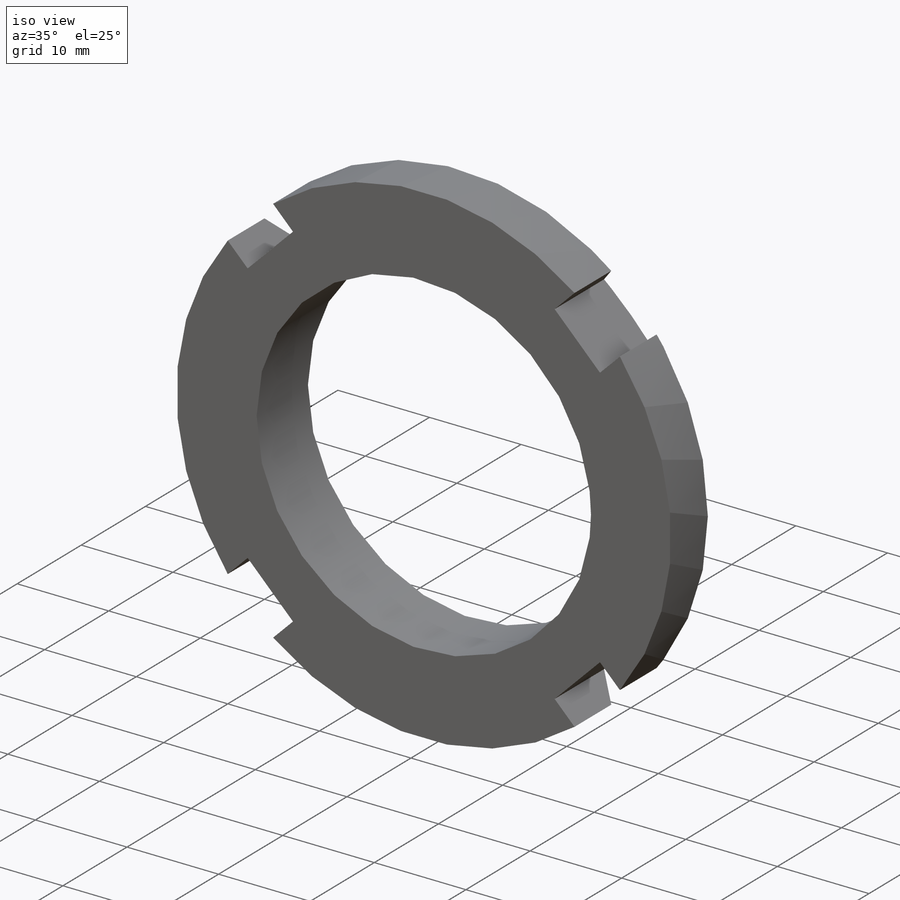
[diagram: iso view]
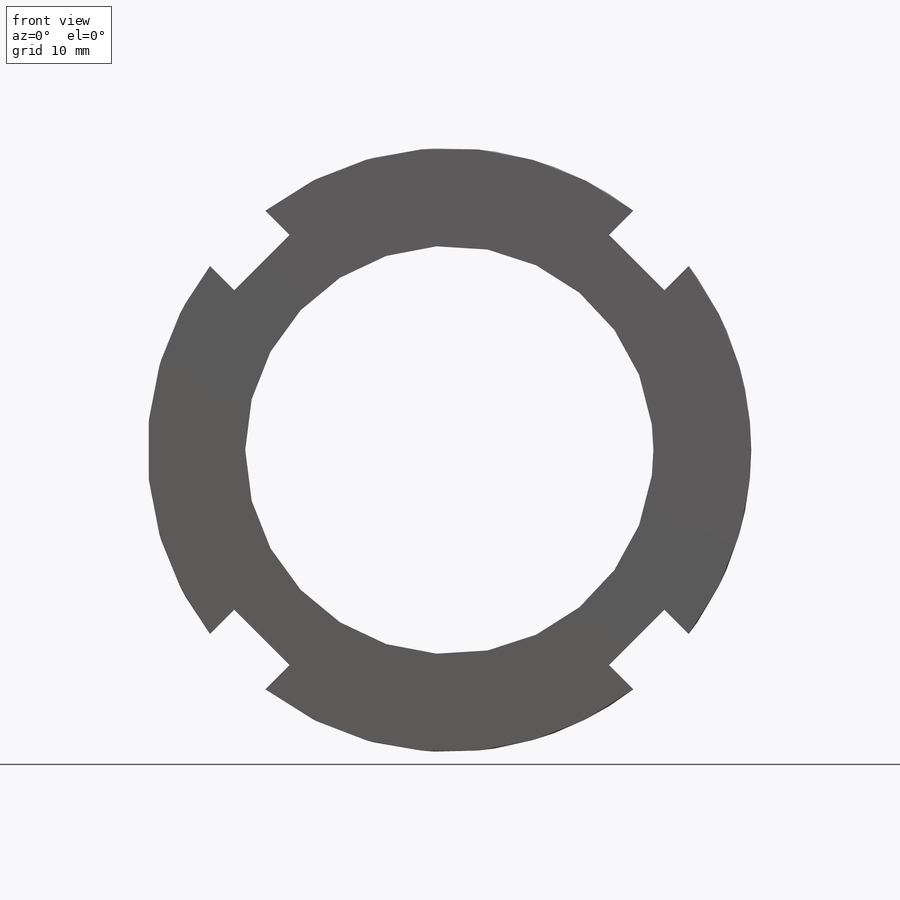
[diagram: front view]
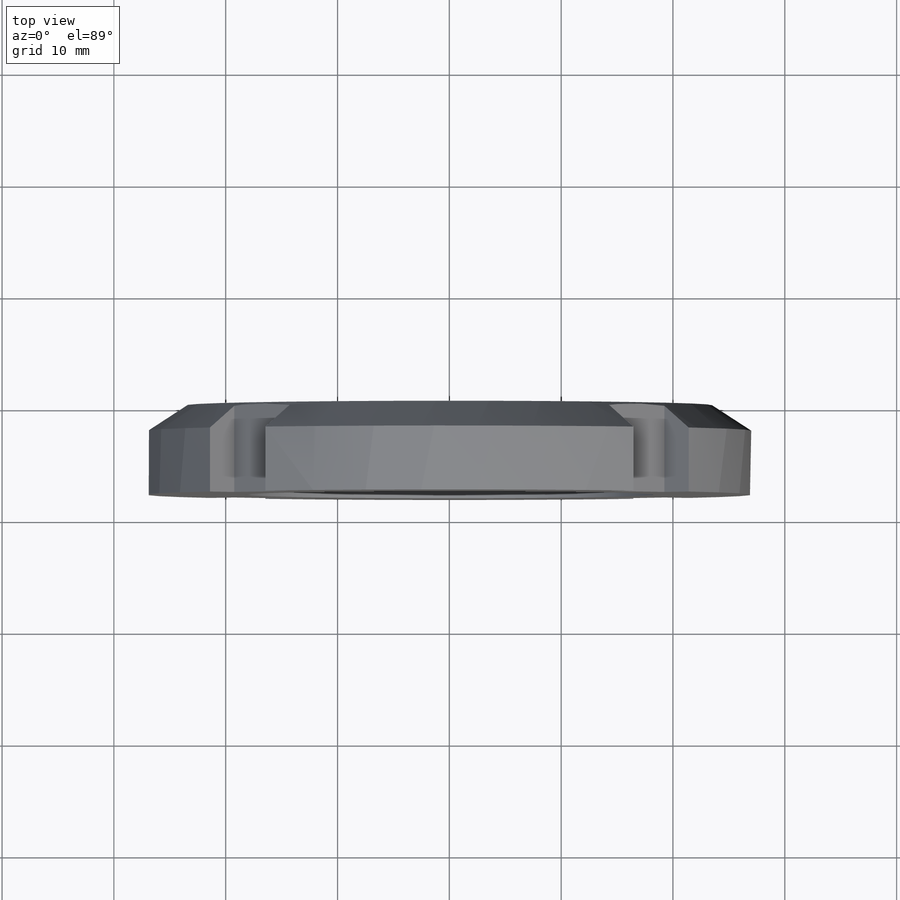
[diagram: top view]
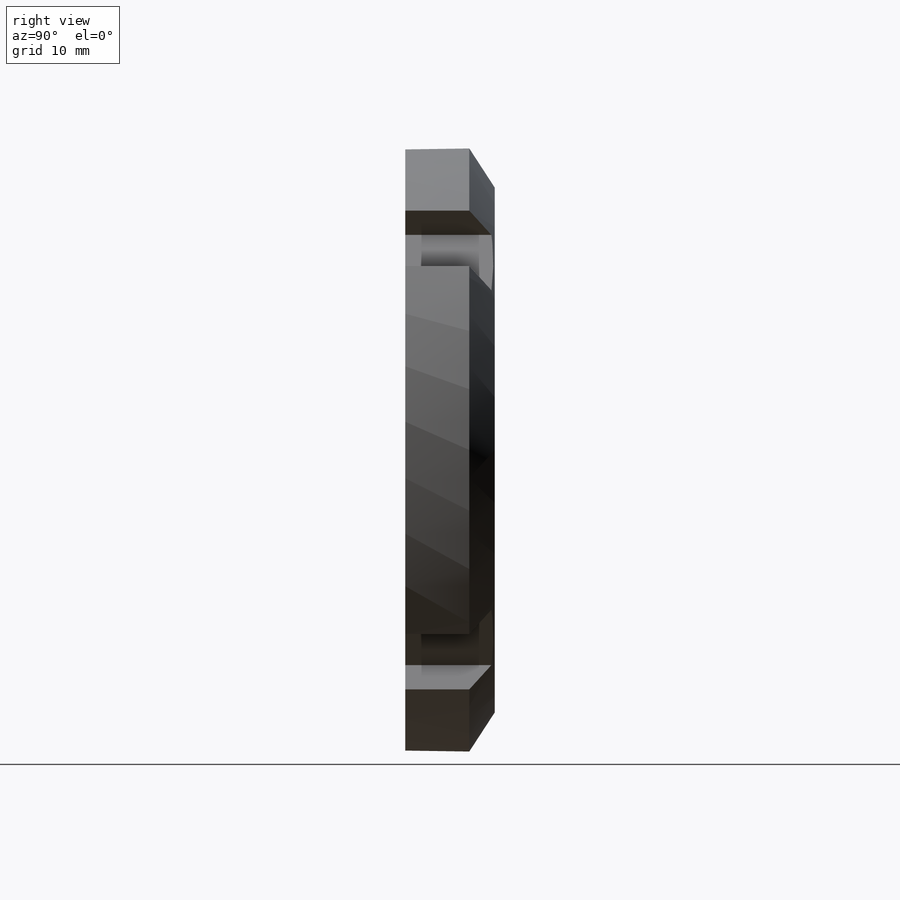
[diagram: right view]
SOLIDWORKS PART (.sldprt)
format: sldprt  version: not decoded by parser v0  size: 179,200 bytes
history: native  units: mm
features: sketch x3, material x1, extrude x1, cut_extrude x1, pattern_circular x1, cut_revolve x1 (+13 scaffold rows collapsed)
feature tree (21):
  scaffold x13  (default folders/planes/origin — collapsed)
  material  "Alloy Steel"
  sketch  "Sketch1"  dims[D1=54.0mm D2=36.5mm]
  extrude  "Extrude1"  Depth=8mm
  sketch  "Sketch2"  dims[c1.D3=38.1mm c1.D1=~22.121886mm c2.D1=45.0deg c2.D2=7.0mm c2.D3=23.7mm]
  cut_extrude  "Cut-Extrude1"  [1 undecoded]
  pattern_circular  "CirPattern1"  Count=4 Angle=360deg
  sketch  "Sketch3"  dims[c1.D1=47.0mm c1.D2=~2.607244mm c2.D2=33.0deg]
  cut_revolve  "Cut-Revolve1"  Angle=360deg
decode coverage: 6 of 7 modeling features carry decoded parameters
note: ~ marks probable driven/reference dimensions
note: 1 parameter value undecoded
note: suppression state not decoded; provenance and decode notes live in map.json
